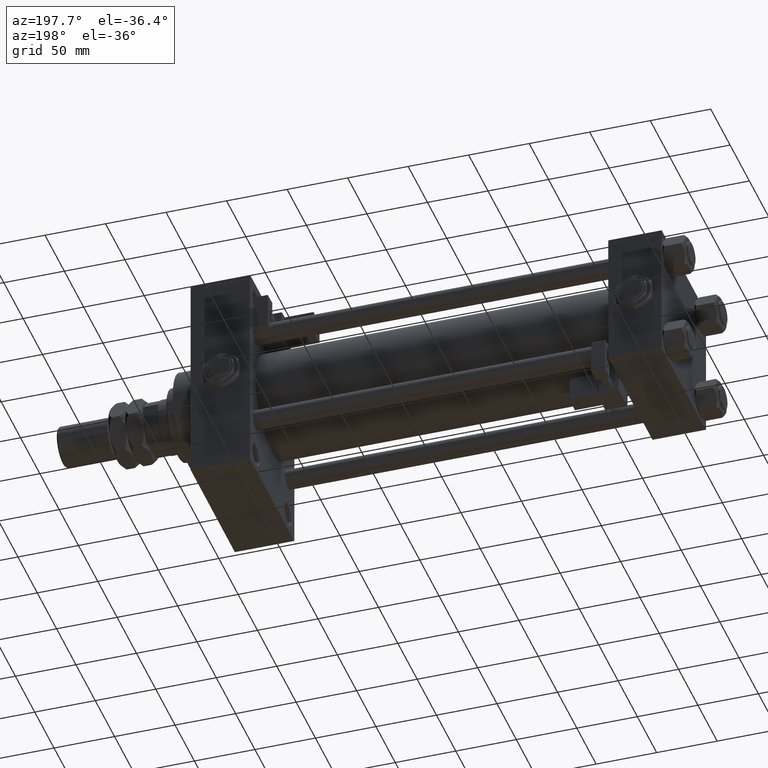
[diagram: clean part render]
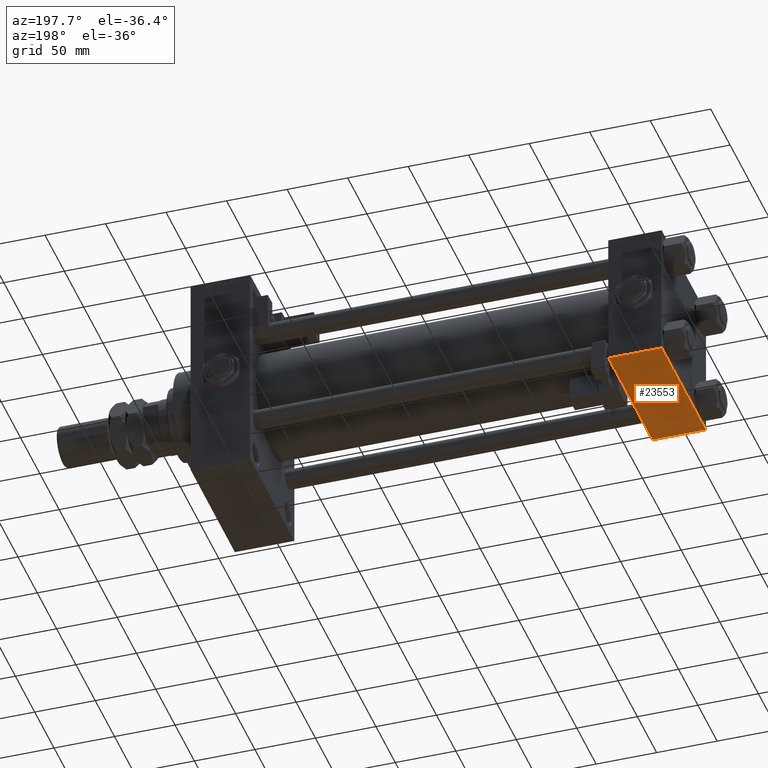
[diagram: same view with one face highlighted and labeled with its STEP entity id]
A machine part, auxiliary view. The second image highlights one B-rep face of the part: STEP entity #23553.
In plain terms, the highlighted planar face has unit normal (0, 0, -1).
Its self-contained STEP definition (entity closure, byte-faithful):
#3937 = DIRECTION ( 'NONE',  ( 0.000000000000000000, 1.000000000000000000, 1.206764157201257045E-16 ) ) ;
#4397 = CARTESIAN_POINT ( 'NONE',  ( 44.00000000000000000, 57.49999999999999289, -57.49999999999999289 ) ) ;
#6367 = EDGE_LOOP ( 'NONE', ( #42628, #26143, #40500, #40572 ) ) ;
#7850 = VECTOR ( 'NONE', #19029, 1000.000000000000000 ) ;
#8239 = VECTOR ( 'NONE', #8322, 1000.000000000000000 ) ;
#8322 = DIRECTION ( 'NONE',  ( 0.000000000000000000, -1.000000000000000000, -1.206764157201257045E-16 ) ) ;
#9221 = VECTOR ( 'NONE', #43833, 1000.000000000000000 ) ;
#15172 = EDGE_CURVE ( 'NONE', #22656, #33959, #26476, .T. ) ;
#19029 = DIRECTION ( 'NONE',  ( 1.000000000000000000, 0.000000000000000000, 0.000000000000000000 ) ) ;
#20310 = FACE_OUTER_BOUND ( 'NONE', #6367, .T. ) ;
#22656 = VERTEX_POINT ( 'NONE', #24754 ) ;
#23006 = VECTOR ( 'NONE', #38440, 1000.000000000000000 ) ;
#23553 = ADVANCED_FACE ( 'NONE', ( #20310 ), #37971, .T. ) ;
#23920 = LINE ( 'NONE', #39686, #7850 ) ;
#23982 = CARTESIAN_POINT ( 'NONE',  ( 0.000000000000000000, -57.00000000000000711, -57.50000000000000711 ) ) ;
#24046 = AXIS2_PLACEMENT_3D ( 'NONE', #53520, #33352, #3937 ) ;
#24754 = CARTESIAN_POINT ( 'NONE',  ( 44.00000000000000000, 57.00000000000002132, -57.49999999999999289 ) ) ;
#26143 = ORIENTED_EDGE ( 'NONE', *, *, #28387, .T. ) ;
#26476 = LINE ( 'NONE', #4397, #23006 ) ;
#28387 = EDGE_CURVE ( 'NONE', #33736, #22656, #23920, .T. ) ;
#33352 = DIRECTION ( 'NONE',  ( 0.000000000000000000, 1.206764157201257045E-16, -1.000000000000000000 ) ) ;
#33736 = VERTEX_POINT ( 'NONE', #36823 ) ;
#33920 = CARTESIAN_POINT ( 'NONE',  ( 0.000000000000000000, 57.49999999999999289, -57.49999999999999289 ) ) ;
#33959 = VERTEX_POINT ( 'NONE', #43061 ) ;
#33988 = VERTEX_POINT ( 'NONE', #52301 ) ;
#36207 = LINE ( 'NONE', #23982, #9221 ) ;
#36823 = CARTESIAN_POINT ( 'NONE',  ( 0.000000000000000000, 57.00000000000002132, -57.49999999999999289 ) ) ;
#37971 = PLANE ( 'NONE',  #24046 ) ;
#38440 = DIRECTION ( 'NONE',  ( 0.000000000000000000, -1.000000000000000000, -1.206764157201257045E-16 ) ) ;
#39686 = CARTESIAN_POINT ( 'NONE',  ( 44.00000000000000000, 57.00000000000002132, -57.49999999999999289 ) ) ;
#40500 = ORIENTED_EDGE ( 'NONE', *, *, #15172, .T. ) ;
#40572 = ORIENTED_EDGE ( 'NONE', *, *, #42863, .T. ) ;
#42628 = ORIENTED_EDGE ( 'NONE', *, *, #44090, .F. ) ;
#42863 = EDGE_CURVE ( 'NONE', #33959, #33988, #36207, .T. ) ;
#43061 = CARTESIAN_POINT ( 'NONE',  ( 44.00000000000000000, -57.00000000000000711, -57.50000000000000711 ) ) ;
#43833 = DIRECTION ( 'NONE',  ( -1.000000000000000000, 0.000000000000000000, 0.000000000000000000 ) ) ;
#44090 = EDGE_CURVE ( 'NONE', #33736, #33988, #49443, .T. ) ;
#49443 = LINE ( 'NONE', #33920, #8239 ) ;
#52301 = CARTESIAN_POINT ( 'NONE',  ( 0.000000000000000000, -57.00000000000000711, -57.50000000000000711 ) ) ;
#53520 = CARTESIAN_POINT ( 'NONE',  ( 44.00000000000000000, 57.49999999999999289, -57.49999999999999289 ) ) ;